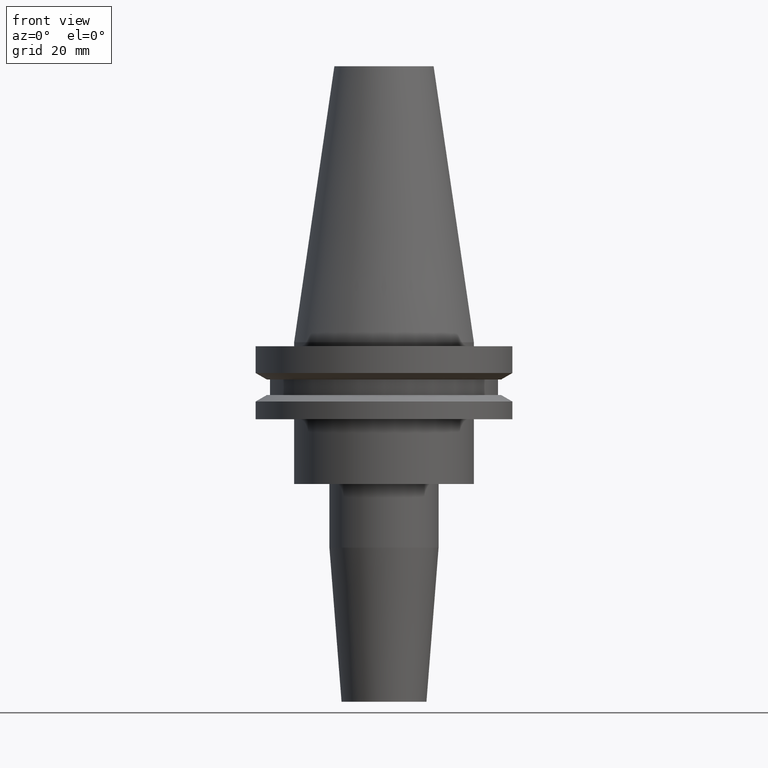
[diagram: clean part render]
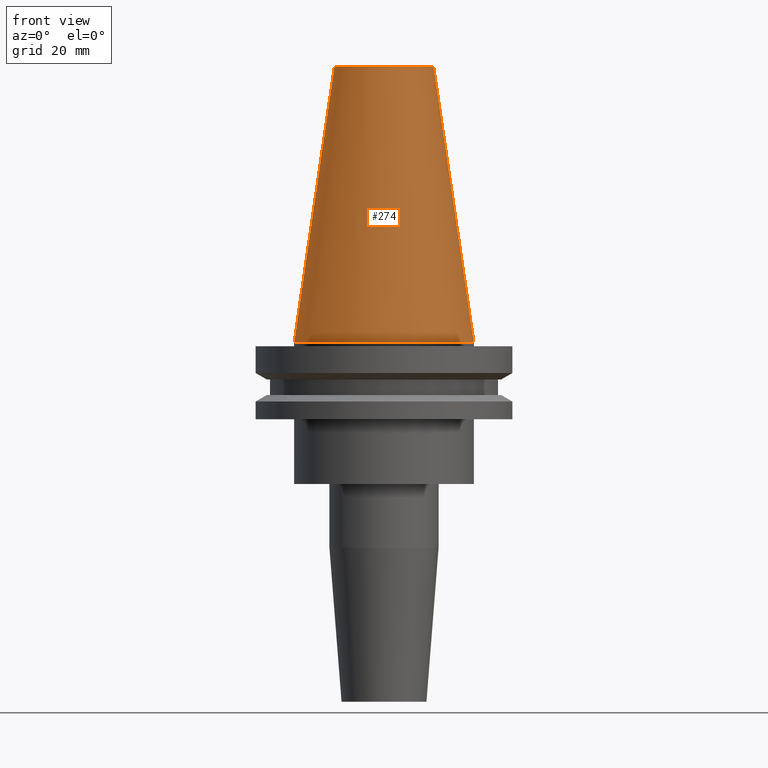
[diagram: same view with one face highlighted and labeled with its STEP entity id]
A machine part, front view. The second image highlights one B-rep face of the part: STEP entity #274.
In plain terms, the highlighted conical surface has half-angle 8.297 deg.
Its self-contained STEP definition (entity closure, byte-faithful):
#36 = LINE ( 'NONE', #90, #134 ) ;
#43 = EDGE_LOOP ( 'NONE', ( #435, #597, #394, #357 ) ) ;
#79 = CARTESIAN_POINT ( 'NONE',  ( 0.000000000000000000, 0.000000000000000000, 68.25000000000000000 ) ) ;
#90 = CARTESIAN_POINT ( 'NONE',  ( -22.22500000000000142, 0.000000000000000000, 0.000000000000000000 ) ) ;
#92 = VERTEX_POINT ( 'NONE', #265 ) ;
#106 = AXIS2_PLACEMENT_3D ( 'NONE', #442, #247, #502 ) ;
#112 = CARTESIAN_POINT ( 'NONE',  ( -12.27178102086201150, 0.000000000000000000, 68.25000000000000000 ) ) ;
#130 = DIRECTION ( 'NONE',  ( 1.000000000000000000, 0.000000000000000000, 0.000000000000000000 ) ) ;
#134 = VECTOR ( 'NONE', #819, 999.9999999999998863 ) ;
#188 = VERTEX_POINT ( 'NONE', #112 ) ;
#190 = AXIS2_PLACEMENT_3D ( 'NONE', #609, #670, #348 ) ;
#247 = DIRECTION ( 'NONE',  ( -0.000000000000000000, -0.000000000000000000, 1.000000000000000000 ) ) ;
#251 = CARTESIAN_POINT ( 'NONE',  ( 22.22500000000000142, 2.721777511104992849E-15, 0.000000000000000000 ) ) ;
#255 = LINE ( 'NONE', #251, #774 ) ;
#265 = CARTESIAN_POINT ( 'NONE',  ( -22.22500000000000142, 0.000000000000000000, 0.000000000000000000 ) ) ;
#274 = ADVANCED_FACE ( 'NONE', ( #681 ), #589, .T. ) ;
#296 = CARTESIAN_POINT ( 'NONE',  ( 12.27178102086201150, 2.112318622904291439E-15, 68.25000000000000000 ) ) ;
#315 = EDGE_CURVE ( 'NONE', #188, #829, #575, .T. ) ;
#348 = DIRECTION ( 'NONE',  ( -1.000000000000000000, 0.000000000000000000, 0.000000000000000000 ) ) ;
#352 = DIRECTION ( 'NONE',  ( -0.000000000000000000, -0.000000000000000000, 1.000000000000000000 ) ) ;
#357 = ORIENTED_EDGE ( 'NONE', *, *, #667, .T. ) ;
#389 = CIRCLE ( 'NONE', #106, 22.22500000000000142 ) ;
#394 = ORIENTED_EDGE ( 'NONE', *, *, #491, .T. ) ;
#435 = ORIENTED_EDGE ( 'NONE', *, *, #548, .F. ) ;
#442 = CARTESIAN_POINT ( 'NONE',  ( 0.000000000000000000, 0.000000000000000000, 0.000000000000000000 ) ) ;
#491 = EDGE_CURVE ( 'NONE', #188, #92, #36, .T. ) ;
#502 = DIRECTION ( 'NONE',  ( 1.000000000000000000, 0.000000000000000000, 0.000000000000000000 ) ) ;
#533 = AXIS2_PLACEMENT_3D ( 'NONE', #79, #352, #130 ) ;
#548 = EDGE_CURVE ( 'NONE', #829, #727, #255, .T. ) ;
#575 = CIRCLE ( 'NONE', #533, 12.27178102086201150 ) ;
#589 = CONICAL_SURFACE ( 'NONE', #190, 22.22500000000000142, 0.1448138465474119174 ) ;
#597 = ORIENTED_EDGE ( 'NONE', *, *, #315, .F. ) ;
#598 = CARTESIAN_POINT ( 'NONE',  ( 22.22500000000000142, 2.721777511104992849E-15, 0.000000000000000000 ) ) ;
#609 = CARTESIAN_POINT ( 'NONE',  ( 0.000000000000000000, 0.000000000000000000, 0.000000000000000000 ) ) ;
#667 = EDGE_CURVE ( 'NONE', #92, #727, #389, .T. ) ;
#670 = DIRECTION ( 'NONE',  ( 0.000000000000000000, 0.000000000000000000, -1.000000000000000000 ) ) ;
#681 = FACE_OUTER_BOUND ( 'NONE', #43, .T. ) ;
#727 = VERTEX_POINT ( 'NONE', #598 ) ;
#774 = VECTOR ( 'NONE', #850, 999.9999999999998863 ) ;
#819 = DIRECTION ( 'NONE',  ( -0.1443082272672999711, 0.000000000000000000, -0.9895327864921755756 ) ) ;
#829 = VERTEX_POINT ( 'NONE', #296 ) ;
#850 = DIRECTION ( 'NONE',  ( 0.1443082272672999711, 1.767266086135276757E-17, -0.9895327864921755756 ) ) ;